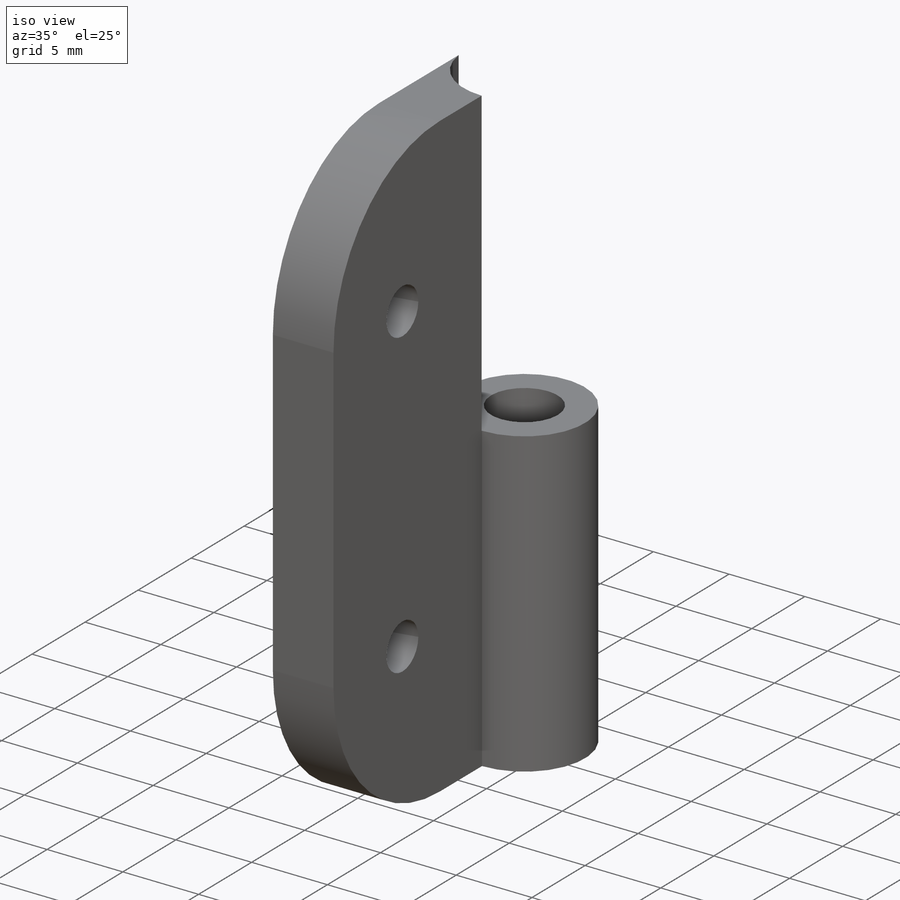
[diagram: iso view]
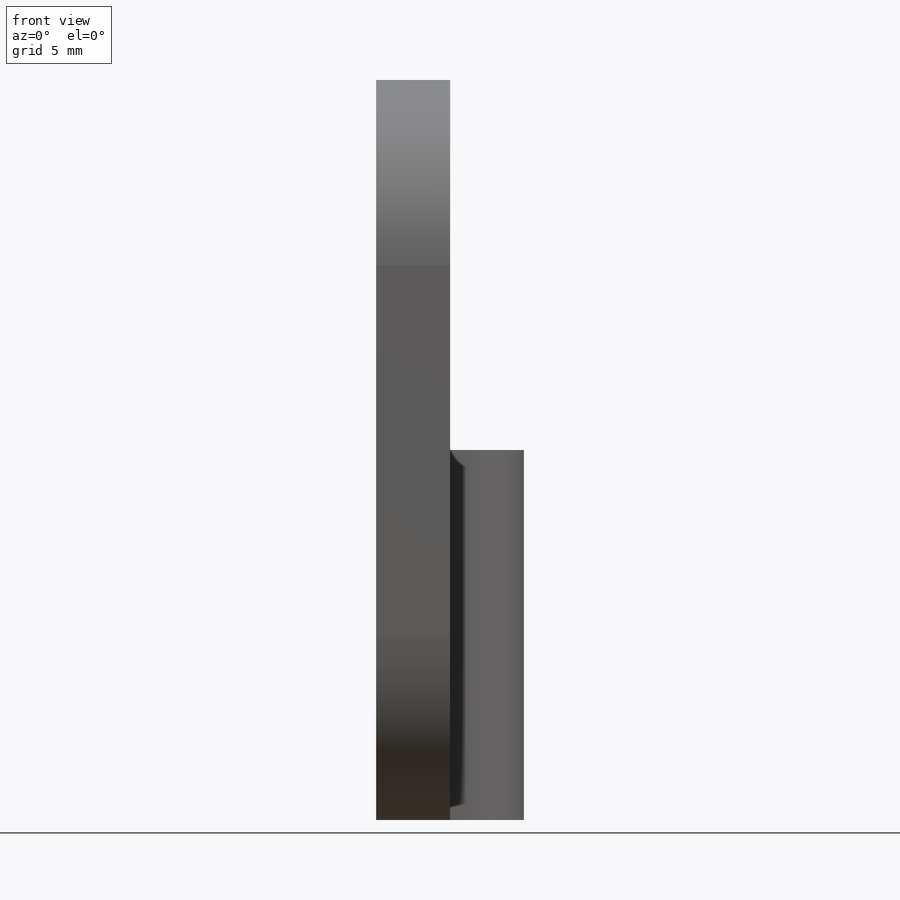
[diagram: front view]
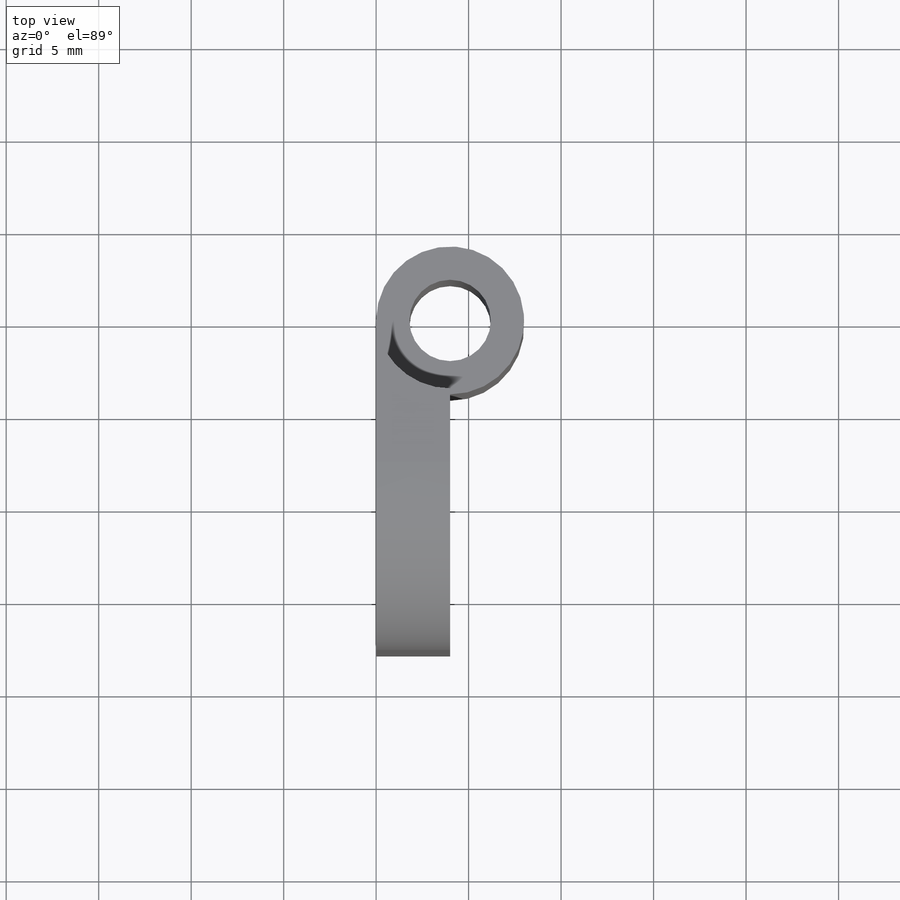
[diagram: top view]
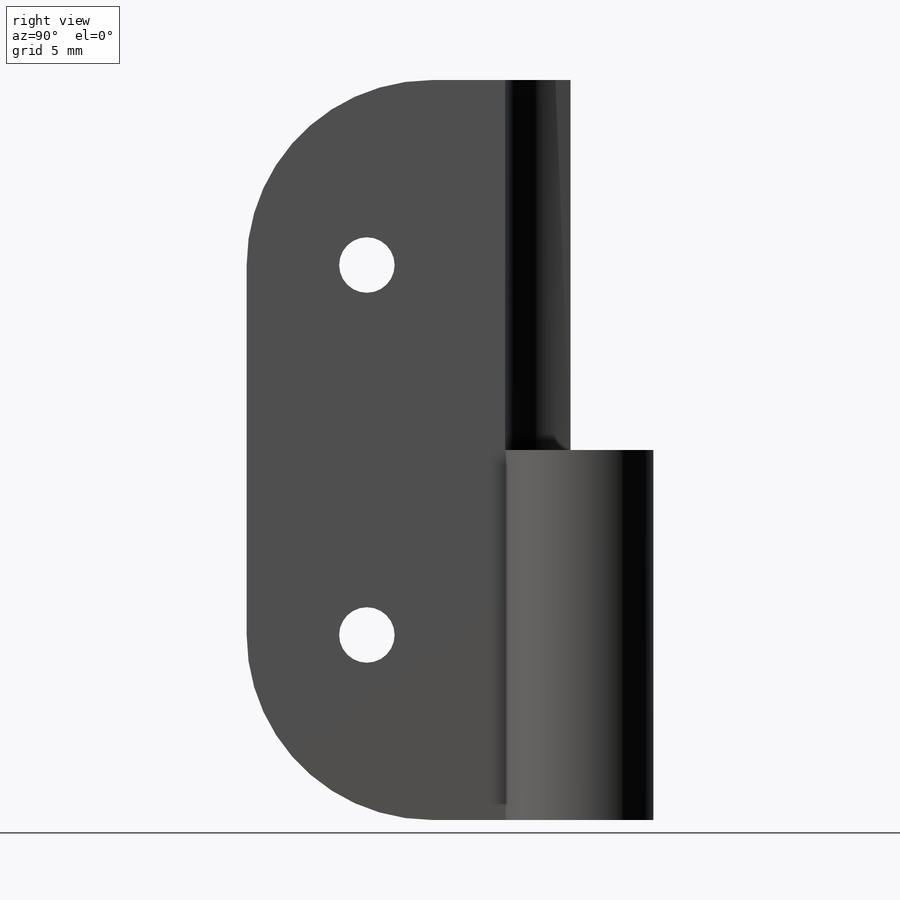
[diagram: right view]
SOLIDWORKS PART (.sldprt)
format: sldprt  version: not decoded by parser v0  size: 161,280 bytes
history: native  units: mm
features: sketch x5, cut_extrude x3, material x1, sweep x1, fillet x1 (+11 scaffold rows collapsed)
feature tree (22):
  scaffold x11  (default folders/planes/origin — collapsed)
  material  "ABS PC"
  sketch  "Sketch1"  dims[c1.D1=40.0mm c2.D1=18.0mm c2.D5=4.0mm c2.D6=1.0mm c2.D7=5.0mm]
  sketch  "Sketch4"
  sweep  "Sweep3"
  sketch  "Sketch7"  dims[D1=2.1mm]
  cut_extrude  "Cut-Extrude2"  [1 undecoded]
  sketch  "Sketch8"  dims[D1=4.05mm]
  cut_extrude  "Cut-Extrude5"  Depth=20mm
  sketch  "Sketch9"  dims[c1.D1=4.0mm c1.D2=4.0mm c1.D3=7.0mm c1.D4=6.0mm c1.D5=9.5mm c1.D6=~2.200076mm c2.D1=11.5mm c2.D2=10.0mm c2.D3=10.0mm c2.D4=5.0mm]
  cut_extrude  "Cut-Extrude6"  [1 undecoded]
  fillet  "Fillet1"  Radius=10mm
decode coverage: 6 of 10 modeling features carry decoded parameters
note: ~ marks probable driven/reference dimensions
note: 2 parameter values undecoded
note: suppression state not decoded; provenance and decode notes live in map.json
